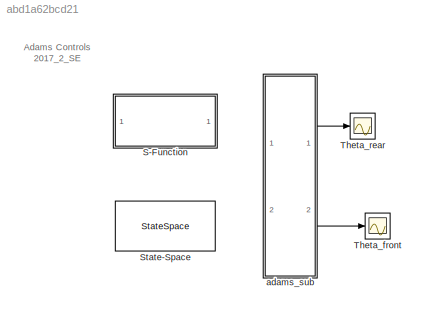
MODEL slx_abd1a62bcd21
KIND model
CONFIG AbsTol = 1e-6
CONFIG FixedStep = auto
CONFIG MaxStep = auto
CONFIG MinStep = auto
CONFIG RelTol = 1e-3
CONFIG SampleTimeConstraint = Unconstrained
CONFIG Solver = ode45
CONFIG SolverMode = SingleTasking
CONFIG SolverName = ode45
CONFIG StartTime = 0.0
CONFIG StopTime = 1.0
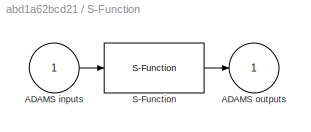
BLOCK [SubSystem] S-Function
  InitFcn = clear mex
  LoadFcn = %check based on dialog box setting for when setting by popup menu                                             \nif exist('ADAMS_solver_type')                                                                                 \n  if strcmp(ADAMS_solver_type,'C++')                                                                          \n    set_param(gcb,'exetyp','C++');                                 ...<+3488ch>
  OpenFcn = open_system(gcb,'mask')                                                                                                                          \nif not(exist('set_some_params_states'))                                                                                                          \n                                                                                                            ...<+625ch>
  Ports = [1, 1]
  RequestExecContextInheritance = off
  Variant = off
BLOCK [Inport] S-Function/ADAMS inputs
  IconDisplay = Port number
BLOCK [Outport] S-Function/ADAMS outputs
  IconDisplay = Port number
  InitialOutput = 0
BLOCK [S-Function] S-Function/S-Function
  EnableBusSupport = off
  FunctionName = adams_plant
  Parameters = exevie,exesol,stat,outfil,nampre,o_rate,nam_in,namout,dft,modsim,modani,dt_out,inicmd,exetyp,comtyp,ada_host, workdir,pin_interp_order,pout_extrap_order,pin_extrap_order,pout_interp_order,simulink_lead_cosim
  Ports = [1, 1]
  SFunctionDeploymentMode = off
  StopFcn = clear mex
BLOCK [StateSpace] State-Space
  A = ADAMS_a
  B = ADAMS_b
  C = ADAMS_c
  D = ADAMS_d
  Ports = [1, 1]
  X0 = 0
BLOCK [Scope] Theta_front
  Ports = [1]
BLOCK [Scope] Theta_rear 
  Ports = [1]
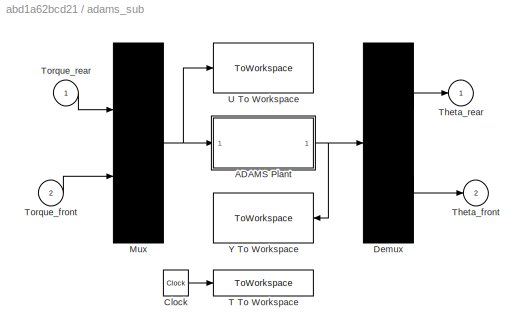
BLOCK [SubSystem] adams_sub
  Ports = [2, 2]
  RequestExecContextInheritance = off
  ShowPortLabels = none
  Variant = off
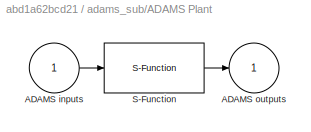
BLOCK [SubSystem] adams_sub/ADAMS Plant
  InitFcn = clear mex
  LoadFcn = %check based on dialog box setting for when setting by popup menu                                             \nif exist('ADAMS_solver_type')                                                                                 \n  if strcmp(ADAMS_solver_type,'C++')                                                                          \n    set_param(gcb,'exetyp','C++');                                 ...<+3488ch>
  OpenFcn = open_system(gcb,'mask')                                                                                                                          \nif not(exist('set_some_params_states'))                                                                                                          \n                                                                                                            ...<+625ch>
  Ports = [1, 1]
  RequestExecContextInheritance = off
  Variant = off
BLOCK [Inport] adams_sub/ADAMS Plant/ADAMS inputs
  IconDisplay = Port number
BLOCK [Outport] adams_sub/ADAMS Plant/ADAMS outputs
  IconDisplay = Port number
  InitialOutput = 0
BLOCK [S-Function] adams_sub/ADAMS Plant/S-Function
  EnableBusSupport = off
  FunctionName = adams_plant
  Parameters = exevie,exesol,stat,outfil,nampre,o_rate,nam_in,namout,dft,modsim,modani,dt_out,inicmd,exetyp,comtyp,ada_host, workdir,pin_interp_order,pout_extrap_order,pin_extrap_order,pout_interp_order,simulink_lead_cosim
  Ports = [1, 1]
  SFunctionDeploymentMode = off
  StopFcn = clear mex
BLOCK [Clock] adams_sub/Clock
BLOCK [Demux] adams_sub/Demux
  Outputs = 2
  Ports = [1, 2]
BLOCK [Mux] adams_sub/Mux
  Inputs = 2
  Ports = [2, 1]
BLOCK [ToWorkspace] adams_sub/T To Workspace
  MaxDataPoints = 100000
  Ports = [1]
  VariableName = ADAMS_tout
BLOCK [Outport] adams_sub/Theta_front
  IconDisplay = Port number
  Port = 2
BLOCK [Outport] adams_sub/Theta_rear 
  IconDisplay = Port number
BLOCK [Inport] adams_sub/Torque_front
  IconDisplay = Port number
  Port = 2
BLOCK [Inport] adams_sub/Torque_rear 
  IconDisplay = Port number
BLOCK [ToWorkspace] adams_sub/U To Workspace
  MaxDataPoints = 100000
  Ports = [1]
  VariableName = ADAMS_uout
BLOCK [ToWorkspace] adams_sub/Y To Workspace
  MaxDataPoints = 100000
  Ports = [1]
  VariableName = ADAMS_yout
ANNOTATION (root): Adams Controls 2017_2_SE
LINE S-Function/ADAMS inputs:1 -> S-Function/S-Function:1
LINE S-Function/S-Function:1 -> S-Function/ADAMS outputs:1
LINE adams_sub/ADAMS Plant/ADAMS inputs:1 -> adams_sub/ADAMS Plant/S-Function:1
LINE adams_sub/ADAMS Plant/S-Function:1 -> adams_sub/ADAMS Plant/ADAMS outputs:1
NET adams_sub/ADAMS Plant:1 -> adams_sub/Demux:1, adams_sub/Y To Workspace:1
LINE adams_sub/Clock:1 -> adams_sub/T To Workspace:1
LINE adams_sub/Demux:1 -> adams_sub/Theta_rear :1
LINE adams_sub/Demux:2 -> adams_sub/Theta_front:1
NET adams_sub/Mux:1 -> adams_sub/ADAMS Plant:1, adams_sub/U To Workspace:1
LINE adams_sub/Torque_front:1 -> adams_sub/Mux:2
LINE adams_sub/Torque_rear :1 -> adams_sub/Mux:1
LINE adams_sub:1 -> Theta_rear :1
LINE adams_sub:2 -> Theta_front:1
note: NET lines group one-source signal fan-out (src -> all destinations, sorted); 1:1 wires keep LINE
